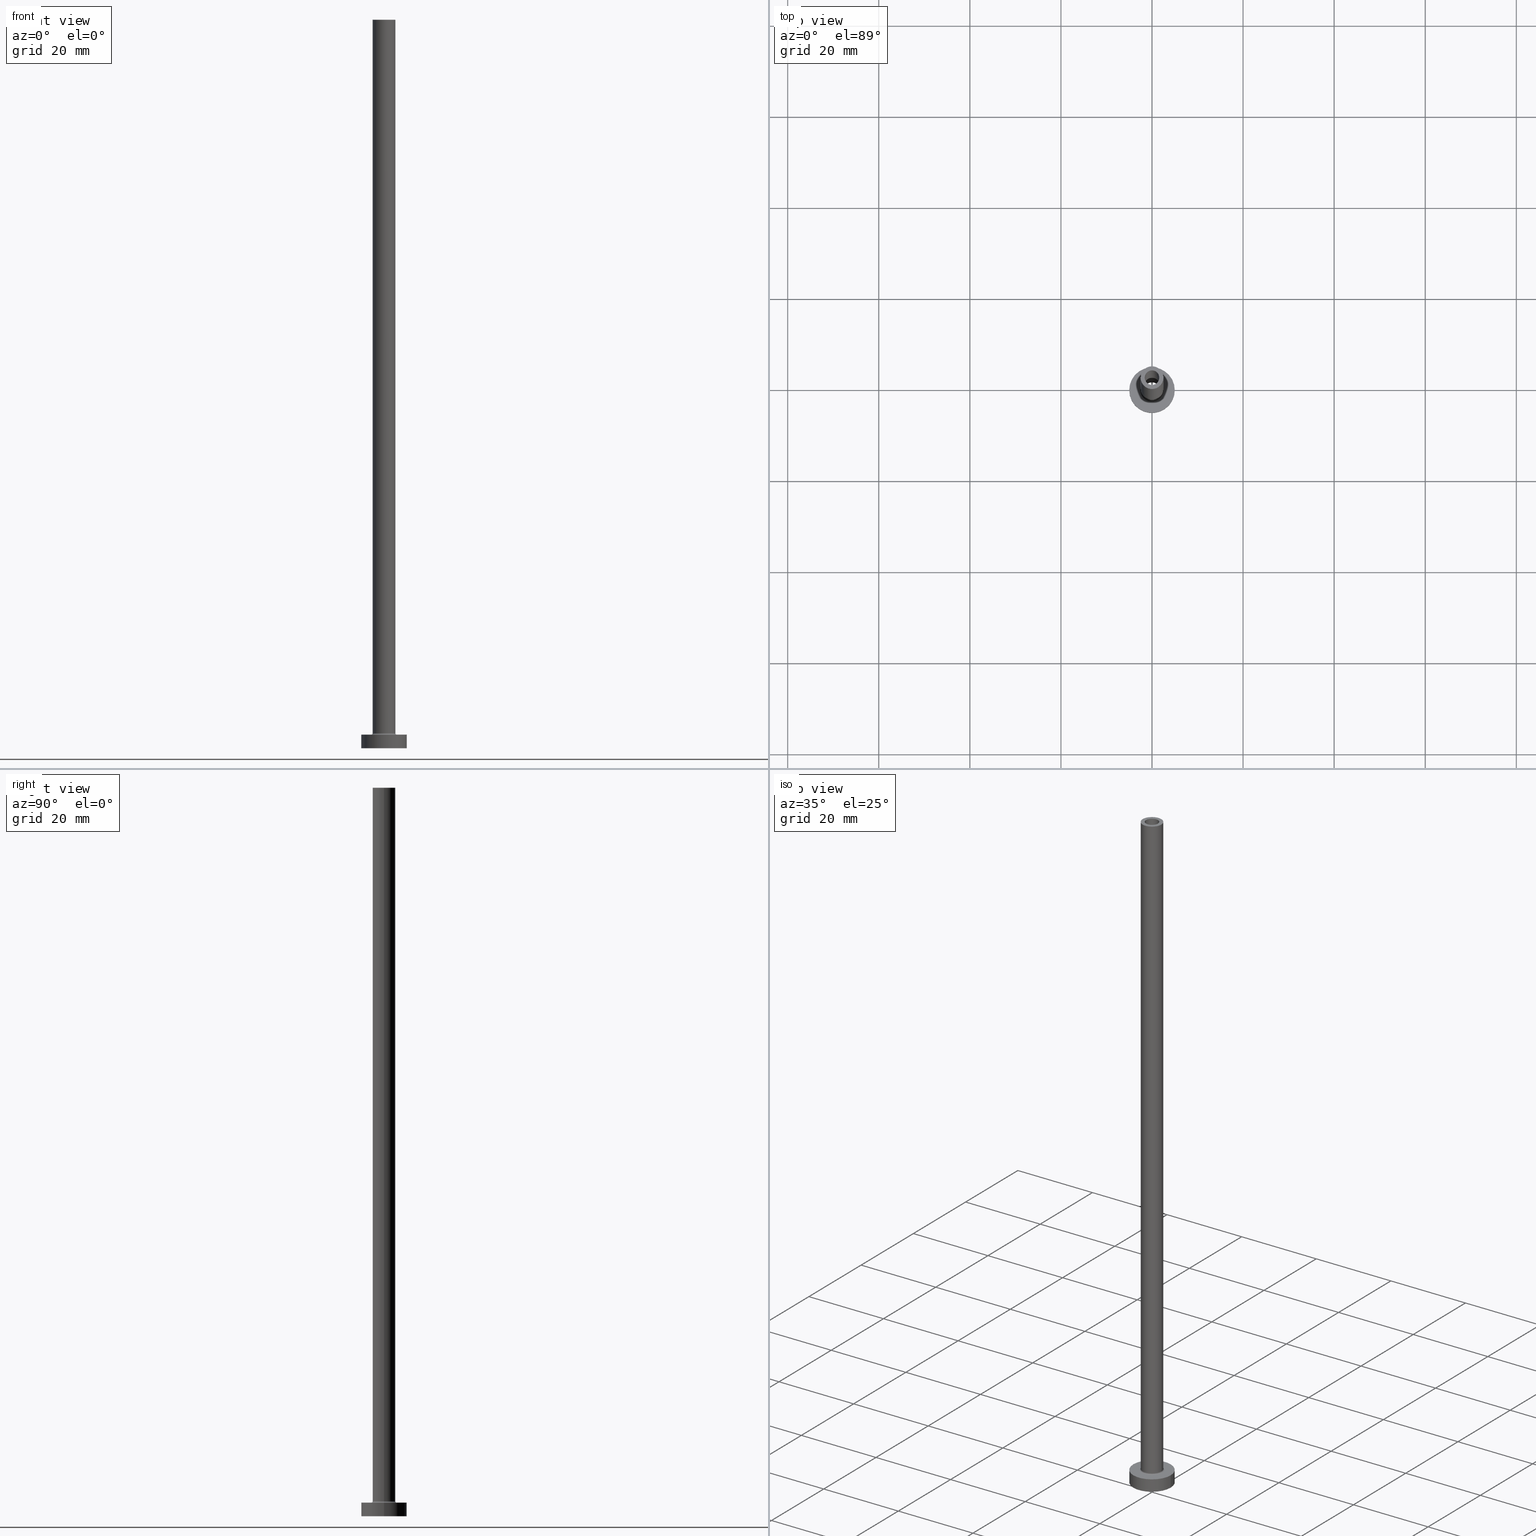
[diagram: canonical four-view strip — front | top / right | iso, engineering-drawing reading convention]
A machine part, canonical four-view strip (front | top / right | iso — engineering-drawing reading convention). The complete STEP part file that produces these views, byte-faithful:
ISO-10303-21;
HEADER;
FILE_DESCRIPTION (( 'STEP AP203' ),
    '1' );
FILE_NAME ('24dd.STEP',
    '2023-02-13T12:02:35',
    ( '' ),
    ( '' ),
    'SwSTEP 2.0',
    'SolidWorks 2019',
    '' );
FILE_SCHEMA (( 'CONFIG_CONTROL_DESIGN' ));
ENDSEC;

DATA;
#1 = DIRECTION ( 'NONE',  ( 1.000000000000000000, 0.000000000000000000, 0.000000000000000000 ) ) ;
#2 = DIRECTION ( 'NONE',  ( 0.000000000000000000, 0.000000000000000000, 1.000000000000000000 ) ) ;
#3 = CIRCLE ( 'NONE', #156, 1.750000000000000000 ) ;
#4 = MECHANICAL_CONTEXT ( 'NONE', #58, 'mechanical' ) ;
#5 = CARTESIAN_POINT ( 'NONE',  ( -5.000000000000000000, 0.000000000000000000, 0.000000000000000000 ) ) ;
#6 = DIRECTION ( 'NONE',  ( -1.000000000000000000, 0.000000000000000000, 0.000000000000000000 ) ) ;
#7 = EDGE_CURVE ( 'NONE', #23, #261, #231, .T. ) ;
#8 = ADVANCED_FACE ( 'NONE', ( #367, #179 ), #406, .F. ) ;
#9 = VECTOR ( 'NONE', #398, 1000.000000000000000 ) ;
#10 = EDGE_CURVE ( 'NONE', #287, #280, #31, .T. ) ;
#11 = FACE_OUTER_BOUND ( 'NONE', #283, .T. ) ;
#12 = EDGE_LOOP ( 'NONE', ( #222, #163 ) ) ;
#13 = EDGE_CURVE ( 'NONE', #139, #230, #275, .T. ) ;
#14 = CARTESIAN_POINT ( 'NONE',  ( -2.799999999999999822, 3.429011037612589276E-16, 2.999999999999998668 ) ) ;
#15 = DIRECTION ( 'NONE',  ( 1.000000000000000000, 0.000000000000000000, 0.000000000000000000 ) ) ;
#16 = ORIENTED_EDGE ( 'NONE', *, *, #136, .F. ) ;
#17 = LINE ( 'NONE', #448, #173 ) ;
#18 = AXIS2_PLACEMENT_3D ( 'NONE', #200, #199, #349 ) ;
#19 = CARTESIAN_POINT ( 'NONE',  ( -2.500000000000000000, 0.000000000000000000, 160.0000000000000000 ) ) ;
#20 = APPROVAL ( #224, 'NEUR�EN�' ) ;
#21 = ADVANCED_FACE ( 'NONE', ( #11 ), #282, .F. ) ;
#22 = DIRECTION ( 'NONE',  ( 1.224646799147353207E-16, 1.000000000000000000, -0.000000000000000000 ) ) ;
#23 = VERTEX_POINT ( 'NONE', #14 ) ;
#24 = VERTEX_POINT ( 'NONE', #123 ) ;
#25 = CIRCLE ( 'NONE', #133, 2.500000000000000000 ) ;
#26 = PERSON_AND_ORGANIZATION ( #340, #331 ) ;
#27 = CC_DESIGN_DATE_AND_TIME_ASSIGNMENT ( #300, #29, ( #125 ) ) ;
#28 = ORIENTED_EDGE ( 'NONE', *, *, #453, .F. ) ;
#29 = DATE_TIME_ROLE ( 'classification_date' ) ;
#30 = ADVANCED_FACE ( 'NONE', ( #212 ), #197, .F. ) ;
#31 = CIRCLE ( 'NONE', #138, 5.000000000000000000 ) ;
#32 = APPROVAL_DATE_TIME ( #420, #91 ) ;
#33 = AXIS2_PLACEMENT_3D ( 'NONE', #423, #108, #6 ) ;
#34 = EDGE_CURVE ( 'NONE', #385, #24, #351, .T. ) ;
#35 = CARTESIAN_POINT ( 'NONE',  ( 0.000000000000000000, 0.000000000000000000, 160.0000000000000000 ) ) ;
#36 = ORIENTED_EDGE ( 'NONE', *, *, #74, .F. ) ;
#37 = EDGE_LOOP ( 'NONE', ( #76, #451, #247, #322 ) ) ;
#38 = EDGE_CURVE ( 'NONE', #236, #310, #253, .T. ) ;
#39 = VECTOR ( 'NONE', #98, 1000.000000000000000 ) ;
#40 = AXIS2_PLACEMENT_3D ( 'NONE', #72, #312, #1 ) ;
#41 = PERSON_AND_ORGANIZATION ( #340, #331 ) ;
#42 = PERSON_AND_ORGANIZATION_ROLE ( 'design_owner' ) ;
#43 = DIRECTION ( 'NONE',  ( 1.000000000000000000, 0.000000000000000000, 0.000000000000000000 ) ) ;
#44 = APPROVAL_PERSON_ORGANIZATION ( #419, #20, #100 ) ;
#45 = CARTESIAN_POINT ( 'NONE',  ( 0.000000000000000000, 0.000000000000000000, 0.000000000000000000 ) ) ;
#46 = ORIENTED_EDGE ( 'NONE', *, *, #186, .T. ) ;
#47 = CARTESIAN_POINT ( 'NONE',  ( 0.000000000000000000, 0.000000000000000000, 160.0000000000000000 ) ) ;
#48 = CARTESIAN_POINT ( 'NONE',  ( -1.750000000000000000, 0.000000000000000000, 115.0000000000000000 ) ) ;
#49 = DIRECTION ( 'NONE',  ( -0.000000000000000000, -0.000000000000000000, -1.000000000000000000 ) ) ;
#50 = DIRECTION ( 'NONE',  ( 0.000000000000000000, -1.000000000000000000, 0.000000000000000000 ) ) ;
#51 = ORIENTED_EDGE ( 'NONE', *, *, #115, .F. ) ;
#52 = AXIS2_PLACEMENT_3D ( 'NONE', #444, #120, #85 ) ;
#53 = CARTESIAN_POINT ( 'NONE',  ( 0.000000000000000000, 0.000000000000000000, 160.0000000000000000 ) ) ;
#54 = VECTOR ( 'NONE', #147, 1000.000000000000000 ) ;
#55 = LINE ( 'NONE', #335, #417 ) ;
#56 = ORIENTED_EDGE ( 'NONE', *, *, #453, .T. ) ;
#57 = COORDINATED_UNIVERSAL_TIME_OFFSET ( 1, 0, .AHEAD. ) ;
#58 = APPLICATION_CONTEXT ( 'configuration controlled 3d designs of mechanical parts and assemblies' ) ;
#59 =( NAMED_UNIT ( * ) SI_UNIT ( $, .STERADIAN. ) SOLID_ANGLE_UNIT ( ) );
#60 = ADVANCED_FACE ( 'NONE', ( #88 ), #408, .T. ) ;
#61 = VERTEX_POINT ( 'NONE', #244 ) ;
#62 = LOCAL_TIME ( 13, 2, 35.00000000000000000, #371 ) ;
#63 = DIRECTION ( 'NONE',  ( 1.000000000000000000, 0.000000000000000000, 0.000000000000000000 ) ) ;
#64 = ORIENTED_EDGE ( 'NONE', *, *, #446, .F. ) ;
#65 = DIRECTION ( 'NONE',  ( 1.000000000000000000, 0.000000000000000000, 0.000000000000000000 ) ) ;
#66 = AXIS2_PLACEMENT_3D ( 'NONE', #121, #2, #69 ) ;
#67 = EDGE_CURVE ( 'NONE', #280, #235, #92, .T. ) ;
#68 = DIRECTION ( 'NONE',  ( -1.000000000000000000, 0.000000000000000000, 0.000000000000000000 ) ) ;
#69 = DIRECTION ( 'NONE',  ( 1.000000000000000000, 0.000000000000000000, 0.000000000000000000 ) ) ;
#70 = EDGE_CURVE ( 'NONE', #310, #61, #17, .T. ) ;
#71 = ORIENTED_EDGE ( 'NONE', *, *, #13, .F. ) ;
#72 = CARTESIAN_POINT ( 'NONE',  ( 0.000000000000000000, 0.000000000000000000, 160.0000000000000000 ) ) ;
#73 = CARTESIAN_POINT ( 'NONE',  ( 0.000000000000000000, 0.000000000000000000, 0.000000000000000000 ) ) ;
#74 = EDGE_CURVE ( 'NONE', #385, #23, #155, .T. ) ;
#75 = DIRECTION ( 'NONE',  ( 1.000000000000000000, 0.000000000000000000, 0.000000000000000000 ) ) ;
#76 = ORIENTED_EDGE ( 'NONE', *, *, #432, .T. ) ;
#77 = CARTESIAN_POINT ( 'NONE',  ( 2.500000000000000000, 3.061616997868383141E-16, 160.0000000000000000 ) ) ;
#78 = VECTOR ( 'NONE', #281, 1000.000000000000000 ) ;
#79 = AXIS2_PLACEMENT_3D ( 'NONE', #267, #265, #145 ) ;
#80 = COORDINATED_UNIVERSAL_TIME_OFFSET ( 1, 0, .AHEAD. ) ;
#81 = CARTESIAN_POINT ( 'NONE',  ( 2.500000000000000000, 3.061616997868383141E-16, 160.0000000000000000 ) ) ;
#82 = ORIENTED_EDGE ( 'NONE', *, *, #415, .T. ) ;
#83 = LINE ( 'NONE', #81, #314 ) ;
#84 = CARTESIAN_POINT ( 'NONE',  ( 5.000000000000000000, 6.123233995736766282E-16, 3.000000000000000000 ) ) ;
#85 = DIRECTION ( 'NONE',  ( -1.000000000000000000, 0.000000000000000000, 0.000000000000000000 ) ) ;
#86 = CIRCLE ( 'NONE', #438, 0.2999999999999999334 ) ;
#87 =( GEOMETRIC_REPRESENTATION_CONTEXT ( 3 ) GLOBAL_UNCERTAINTY_ASSIGNED_CONTEXT ( ( #214 ) ) GLOBAL_UNIT_ASSIGNED_CONTEXT ( ( #251, #412, #59 ) ) REPRESENTATION_CONTEXT ( 'NONE', 'WORKASPACE' ) );
#88 = FACE_OUTER_BOUND ( 'NONE', #307, .T. ) ;
#89 = DIRECTION ( 'NONE',  ( 0.000000000000000000, 0.000000000000000000, 1.000000000000000000 ) ) ;
#90 = CARTESIAN_POINT ( 'NONE',  ( 0.000000000000000000, 0.000000000000000000, 160.0000000000000000 ) ) ;
#91 = APPROVAL ( #274, 'NEUR�EN�' ) ;
#92 = LINE ( 'NONE', #293, #148 ) ;
#93 = ADVANCED_FACE ( 'NONE', ( #207 ), #317, .T. ) ;
#94 = CARTESIAN_POINT ( 'NONE',  ( 0.000000000000000000, 0.000000000000000000, 0.000000000000000000 ) ) ;
#95 = DIRECTION ( 'NONE',  ( -1.000000000000000000, 0.000000000000000000, 0.000000000000000000 ) ) ;
#96 = AXIS2_PLACEMENT_3D ( 'NONE', #90, #324, #284 ) ;
#97 = AXIS2_PLACEMENT_3D ( 'NONE', #152, #361, #15 ) ;
#98 = DIRECTION ( 'NONE',  ( 0.000000000000000000, 0.000000000000000000, -1.000000000000000000 ) ) ;
#99 = APPROVAL_ROLE ( '' ) ;
#100 = APPROVAL_ROLE ( '' ) ;
#101 = DIRECTION ( 'NONE',  ( -0.000000000000000000, -0.000000000000000000, -1.000000000000000000 ) ) ;
#102 = AXIS2_PLACEMENT_3D ( 'NONE', #187, #403, #215 ) ;
#103 = AXIS2_PLACEMENT_3D ( 'NONE', #266, #342, #165 ) ;
#104 = CARTESIAN_POINT ( 'NONE',  ( 0.000000000000000000, 0.000000000000000000, 3.299999999999997158 ) ) ;
#105 = CALENDAR_DATE ( 2023, 13, 2 ) ;
#106 = DIRECTION ( 'NONE',  ( 0.000000000000000000, 0.000000000000000000, 1.000000000000000000 ) ) ;
#107 = ORIENTED_EDGE ( 'NONE', *, *, #38, .T. ) ;
#108 = DIRECTION ( 'NONE',  ( 0.000000000000000000, 0.000000000000000000, -1.000000000000000000 ) ) ;
#109 = ORIENTED_EDGE ( 'NONE', *, *, #115, .T. ) ;
#110 = LINE ( 'NONE', #386, #54 ) ;
#111 = FACE_OUTER_BOUND ( 'NONE', #238, .T. ) ;
#112 = CC_DESIGN_PERSON_AND_ORGANIZATION_ASSIGNMENT ( #181, #262, ( #239 ) ) ;
#113 = CARTESIAN_POINT ( 'NONE',  ( 0.000000000000000000, 0.000000000000000000, 115.0000000000000000 ) ) ;
#114 = EDGE_LOOP ( 'NONE', ( #143, #109, #441, #369 ) ) ;
#115 = EDGE_CURVE ( 'NONE', #213, #339, #149, .T. ) ;
#116 = PLANE ( 'NONE',  #254 ) ;
#117 = AXIS2_PLACEMENT_3D ( 'NONE', #94, #443, #445 ) ;
#118 = DIRECTION ( 'NONE',  ( -0.000000000000000000, -0.000000000000000000, -1.000000000000000000 ) ) ;
#119 = PRODUCT_DEFINITION_SHAPE ( 'NONE', 'NONE',  #357 ) ;
#120 = DIRECTION ( 'NONE',  ( 0.000000000000000000, 0.000000000000000000, -1.000000000000000000 ) ) ;
#121 = CARTESIAN_POINT ( 'NONE',  ( 0.000000000000000000, 0.000000000000000000, 115.0000000000000000 ) ) ;
#122 = DIRECTION ( 'NONE',  ( -0.000000000000000000, -0.000000000000000000, -1.000000000000000000 ) ) ;
#123 = CARTESIAN_POINT ( 'NONE',  ( 2.500000000000000000, 3.061616997868383141E-16, 3.299999999999997158 ) ) ;
#124 = APPROVAL ( #311, 'NEUR�EN�' ) ;
#125 = SECURITY_CLASSIFICATION ( '', '', #195 ) ;
#126 = DIRECTION ( 'NONE',  ( -1.000000000000000000, 0.000000000000000000, 0.000000000000000000 ) ) ;
#127 = LINE ( 'NONE', #128, #39 ) ;
#128 = CARTESIAN_POINT ( 'NONE',  ( -1.750000000000000000, 0.000000000000000000, 119.9497474683058442 ) ) ;
#129 = LOCAL_TIME ( 13, 2, 35.00000000000000000, #337 ) ;
#130 = CALENDAR_DATE ( 2023, 13, 2 ) ;
#131 = ORIENTED_EDGE ( 'NONE', *, *, #151, .F. ) ;
#132 = PERSON_AND_ORGANIZATION ( #340, #331 ) ;
#133 = AXIS2_PLACEMENT_3D ( 'NONE', #345, #106, #63 ) ;
#134 = CARTESIAN_POINT ( 'NONE',  ( 0.000000000000000000, 0.000000000000000000, 115.0000000000000000 ) ) ;
#135 = DATE_TIME_ROLE ( 'creation_date' ) ;
#136 = EDGE_CURVE ( 'NONE', #144, #213, #288, .T. ) ;
#137 = CARTESIAN_POINT ( 'NONE',  ( -5.000000000000000000, 0.000000000000000000, 3.000000000000000000 ) ) ;
#138 = AXIS2_PLACEMENT_3D ( 'NONE', #356, #175, #320 ) ;
#139 = VERTEX_POINT ( 'NONE', #19 ) ;
#140 = CC_DESIGN_APPROVAL ( #20, ( #125 ) ) ;
#141 = CYLINDRICAL_SURFACE ( 'NONE', #263, 2.500000000000000000 ) ;
#142 = DIRECTION ( 'NONE',  ( 0.000000000000000000, 0.000000000000000000, 1.000000000000000000 ) ) ;
#143 = ORIENTED_EDGE ( 'NONE', *, *, #136, .T. ) ;
#144 = VERTEX_POINT ( 'NONE', #48 ) ;
#145 = DIRECTION ( 'NONE',  ( 1.000000000000000000, 0.000000000000000000, 0.000000000000000000 ) ) ;
#146 = DIRECTION ( 'NONE',  ( -0.000000000000000000, -0.000000000000000000, -1.000000000000000000 ) ) ;
#147 = DIRECTION ( 'NONE',  ( -0.000000000000000000, -0.000000000000000000, -1.000000000000000000 ) ) ;
#148 = VECTOR ( 'NONE', #49, 1000.000000000000000 ) ;
#149 = LINE ( 'NONE', #245, #9 ) ;
#150 = ORIENTED_EDGE ( 'NONE', *, *, #34, .T. ) ;
#151 = EDGE_CURVE ( 'NONE', #24, #261, #86, .T. ) ;
#152 = CARTESIAN_POINT ( 'NONE',  ( 0.000000000000000000, 0.000000000000000000, 160.0000000000000000 ) ) ;
#153 = LINE ( 'NONE', #84, #78 ) ;
#154 = DIRECTION ( 'NONE',  ( -1.000000000000000000, 0.000000000000000000, 0.000000000000000000 ) ) ;
#155 = CIRCLE ( 'NONE', #384, 0.2999999999999999334 ) ;
#156 = AXIS2_PLACEMENT_3D ( 'NONE', #134, #352, #308 ) ;
#157 = DIRECTION ( 'NONE',  ( -1.000000000000000000, 1.224646799147353207E-16, 0.000000000000000000 ) ) ;
#158 = ORIENTED_EDGE ( 'NONE', *, *, #186, .F. ) ;
#159 = EDGE_LOOP ( 'NONE', ( #347, #28, #258, #301 ) ) ;
#160 = AXIS2_PLACEMENT_3D ( 'NONE', #104, #424, #229 ) ;
#161 = PERSON_AND_ORGANIZATION_ROLE ( 'design_supplier' ) ;
#162 = CALENDAR_DATE ( 2023, 13, 2 ) ;
#163 = ORIENTED_EDGE ( 'NONE', *, *, #7, .T. ) ;
#164 = EDGE_CURVE ( 'NONE', #287, #256, #153, .T. ) ;
#165 = DIRECTION ( 'NONE',  ( 1.000000000000000000, 0.000000000000000000, 0.000000000000000000 ) ) ;
#166 = EDGE_LOOP ( 'NONE', ( #426, #399 ) ) ;
#167 = DIRECTION ( 'NONE',  ( 1.000000000000000000, 0.000000000000000000, 0.000000000000000000 ) ) ;
#168 = PRODUCT_RELATED_PRODUCT_CATEGORY ( 'detail', '', ( #397 ) ) ;
#169 = ORIENTED_EDGE ( 'NONE', *, *, #74, .T. ) ;
#170 = FACE_OUTER_BOUND ( 'NONE', #364, .T. ) ;
#171 = CIRCLE ( 'NONE', #79, 1.750000000000000000 ) ;
#172 = FACE_OUTER_BOUND ( 'NONE', #402, .T. ) ;
#173 = VECTOR ( 'NONE', #248, 1000.000000000000000 ) ;
#174 = DIRECTION ( 'NONE',  ( 1.000000000000000000, 0.000000000000000000, 0.000000000000000000 ) ) ;
#175 = DIRECTION ( 'NONE',  ( 0.000000000000000000, 0.000000000000000000, 1.000000000000000000 ) ) ;
#176 = ORIENTED_EDGE ( 'NONE', *, *, #70, .T. ) ;
#177 = CIRCLE ( 'NONE', #330, 2.500000000000000000 ) ;
#178 = CARTESIAN_POINT ( 'NONE',  ( 0.000000000000000000, 0.000000000000000000, 119.9497474683058442 ) ) ;
#179 = FACE_OUTER_BOUND ( 'NONE', #455, .T. ) ;
#180 = ORIENTED_EDGE ( 'NONE', *, *, #232, .T. ) ;
#181 = PERSON_AND_ORGANIZATION ( #340, #331 ) ;
#182 = CC_DESIGN_DATE_AND_TIME_ASSIGNMENT ( #189, #135, ( #357 ) ) ;
#183 = FACE_BOUND ( 'NONE', #428, .T. ) ;
#184 = ORIENTED_EDGE ( 'NONE', *, *, #67, .F. ) ;
#185 = ORIENTED_EDGE ( 'NONE', *, *, #432, .F. ) ;
#186 = EDGE_CURVE ( 'NONE', #431, #339, #302, .T. ) ;
#187 = CARTESIAN_POINT ( 'NONE',  ( 0.000000000000000000, 0.000000000000000000, 3.299999999999997158 ) ) ;
#188 = PERSON_AND_ORGANIZATION_ROLE ( 'creator' ) ;
#189 = DATE_AND_TIME ( #162, #129 ) ;
#190 = COORDINATED_UNIVERSAL_TIME_OFFSET ( 1, 0, .AHEAD. ) ;
#191 = AXIS2_PLACEMENT_3D ( 'NONE', #178, #241, #405 ) ;
#192 = ORIENTED_EDGE ( 'NONE', *, *, #164, .T. ) ;
#193 = CIRCLE ( 'NONE', #427, 2.799999999999999822 ) ;
#194 = EDGE_LOOP ( 'NONE', ( #36, #373, #295, #378 ) ) ;
#195 = SECURITY_CLASSIFICATION_LEVEL ( 'unclassified' ) ;
#196 = ORIENTED_EDGE ( 'NONE', *, *, #272, .T. ) ;
#197 = TOROIDAL_SURFACE ( 'NONE', #102, 2.799999999999999822, 0.2999999999999999889 ) ;
#198 = CYLINDRICAL_SURFACE ( 'NONE', #33, 1.750000000000000000 ) ;
#199 = DIRECTION ( 'NONE',  ( 0.000000000000000000, 0.000000000000000000, 1.000000000000000000 ) ) ;
#200 = CARTESIAN_POINT ( 'NONE',  ( 0.000000000000000000, 0.000000000000000000, 3.000000000000000000 ) ) ;
#201 = ORIENTED_EDGE ( 'NONE', *, *, #415, .F. ) ;
#202 = AXIS2_PLACEMENT_3D ( 'NONE', #360, #89, #174 ) ;
#203 = CIRCLE ( 'NONE', #66, 1.600000000000000089 ) ;
#204 = CARTESIAN_POINT ( 'NONE',  ( 0.000000000000000000, 0.000000000000000000, 3.299999999999997158 ) ) ;
#205 = FACE_OUTER_BOUND ( 'NONE', #326, .T. ) ;
#206 = ADVANCED_FACE ( 'NONE', ( #435 ), #216, .F. ) ;
#207 = FACE_OUTER_BOUND ( 'NONE', #159, .T. ) ;
#208 = CARTESIAN_POINT ( 'NONE',  ( 0.000000000000000000, 0.000000000000000000, 115.0000000000000000 ) ) ;
#209 = APPROVAL_DATE_TIME ( #217, #124 ) ;
#210 = AXIS2_PLACEMENT_3D ( 'NONE', #113, #309, #346 ) ;
#211 = CARTESIAN_POINT ( 'NONE',  ( 1.750000000000000000, 2.143131898507868297E-16, 115.0000000000000000 ) ) ;
#212 = FACE_OUTER_BOUND ( 'NONE', #194, .T. ) ;
#213 = VERTEX_POINT ( 'NONE', #211 ) ;
#214 = UNCERTAINTY_MEASURE_WITH_UNIT (LENGTH_MEASURE( 1.000000000000000082E-05 ), #251, 'distance_accuracy_value', 'NONE');
#215 = DIRECTION ( 'NONE',  ( 1.000000000000000000, 0.000000000000000000, 0.000000000000000000 ) ) ;
#216 = CYLINDRICAL_SURFACE ( 'NONE', #191, 1.750000000000000000 ) ;
#217 = DATE_AND_TIME ( #249, #62 ) ;
#218 = AXIS2_PLACEMENT_3D ( 'NONE', #45, #246, #436 ) ;
#219 = CARTESIAN_POINT ( 'NONE',  ( -2.799999999999999822, 3.429011037612588783E-16, 3.299999999999997158 ) ) ;
#220 = CARTESIAN_POINT ( 'NONE',  ( 1.750000000000000000, 2.143131898507868297E-16, 0.000000000000000000 ) ) ;
#221 = CIRCLE ( 'NONE', #393, 5.000000000000000000 ) ;
#222 = ORIENTED_EDGE ( 'NONE', *, *, #379, .T. ) ;
#223 = ADVANCED_FACE ( 'NONE', ( #183, #366 ), #116, .T. ) ;
#224 = APPROVAL_STATUS ( 'not_yet_approved' ) ;
#225 = ORIENTED_EDGE ( 'NONE', *, *, #450, .T. ) ;
#226 = ORIENTED_EDGE ( 'NONE', *, *, #38, .F. ) ;
#227 = AXIS2_PLACEMENT_3D ( 'NONE', #286, #122, #154 ) ;
#228 = AXIS2_PLACEMENT_3D ( 'NONE', #73, #142, #387 ) ;
#229 = DIRECTION ( 'NONE',  ( 1.000000000000000000, 0.000000000000000000, 0.000000000000000000 ) ) ;
#230 = VERTEX_POINT ( 'NONE', #77 ) ;
#231 = CIRCLE ( 'NONE', #434, 2.799999999999999822 ) ;
#232 = EDGE_CURVE ( 'NONE', #24, #385, #177, .T. ) ;
#233 = CARTESIAN_POINT ( 'NONE',  ( 0.000000000000000000, 0.000000000000000000, 3.000000000000000000 ) ) ;
#234 = CARTESIAN_POINT ( 'NONE',  ( 0.000000000000000000, 0.000000000000000000, 3.000000000000000000 ) ) ;
#235 = VERTEX_POINT ( 'NONE', #5 ) ;
#236 = VERTEX_POINT ( 'NONE', #442 ) ;
#237 = DIRECTION ( 'NONE',  ( 0.000000000000000000, 0.000000000000000000, 1.000000000000000000 ) ) ;
#238 = EDGE_LOOP ( 'NONE', ( #56, #390 ) ) ;
#239 = PRODUCT_DEFINITION_FORMATION_WITH_SPECIFIED_SOURCE ( 'LIBOVOLN�', '', #397, .NOT_KNOWN. ) ;
#240 = DIRECTION ( 'NONE',  ( 1.000000000000000000, 0.000000000000000000, 0.000000000000000000 ) ) ;
#241 = DIRECTION ( 'NONE',  ( 0.000000000000000000, 0.000000000000000000, -1.000000000000000000 ) ) ;
#242 = EDGE_LOOP ( 'NONE', ( #296, #192, #343, #184 ) ) ;
#243 = CIRCLE ( 'NONE', #407, 5.000000000000000000 ) ;
#244 = CARTESIAN_POINT ( 'NONE',  ( -1.600000000000000089, 0.000000000000000000, 115.0000000000000000 ) ) ;
#245 = CARTESIAN_POINT ( 'NONE',  ( 1.750000000000000000, 2.143131898507868297E-16, 119.9497474683058442 ) ) ;
#246 = DIRECTION ( 'NONE',  ( 0.000000000000000000, 0.000000000000000000, 1.000000000000000000 ) ) ;
#247 = ORIENTED_EDGE ( 'NONE', *, *, #359, .F. ) ;
#248 = DIRECTION ( 'NONE',  ( 0.000000000000000000, 0.000000000000000000, -1.000000000000000000 ) ) ;
#249 = CALENDAR_DATE ( 2023, 13, 2 ) ;
#250 = CARTESIAN_POINT ( 'NONE',  ( 1.600000000000000089, 1.959434878635764737E-16, 115.0000000000000000 ) ) ;
#251 =( LENGTH_UNIT ( ) NAMED_UNIT ( * ) SI_UNIT ( .MILLI., .METRE. ) );
#252 = DIRECTION ( 'NONE',  ( 1.000000000000000000, 0.000000000000000000, 0.000000000000000000 ) ) ;
#253 = CIRCLE ( 'NONE', #97, 1.600000000000000089 ) ;
#254 = AXIS2_PLACEMENT_3D ( 'NONE', #394, #316, #392 ) ;
#255 = CYLINDRICAL_SURFACE ( 'NONE', #447, 5.000000000000000000 ) ;
#256 = VERTEX_POINT ( 'NONE', #400 ) ;
#257 = CALENDAR_DATE ( 2023, 13, 2 ) ;
#258 = ORIENTED_EDGE ( 'NONE', *, *, #67, .T. ) ;
#259 = CC_DESIGN_PERSON_AND_ORGANIZATION_ASSIGNMENT ( #260, #188, ( #357 ) ) ;
#260 = PERSON_AND_ORGANIZATION ( #340, #331 ) ;
#261 = VERTEX_POINT ( 'NONE', #323 ) ;
#262 = PERSON_AND_ORGANIZATION_ROLE ( 'creator' ) ;
#263 = AXIS2_PLACEMENT_3D ( 'NONE', #35, #396, #68 ) ;
#264 = CC_DESIGN_PERSON_AND_ORGANIZATION_ASSIGNMENT ( #132, #161, ( #239 ) ) ;
#265 = DIRECTION ( 'NONE',  ( -0.000000000000000000, -0.000000000000000000, -1.000000000000000000 ) ) ;
#266 = CARTESIAN_POINT ( 'NONE',  ( 0.000000000000000000, 0.000000000000000000, 0.000000000000000000 ) ) ;
#267 = CARTESIAN_POINT ( 'NONE',  ( 0.000000000000000000, 0.000000000000000000, 0.000000000000000000 ) ) ;
#268 = ORIENTED_EDGE ( 'NONE', *, *, #460, .F. ) ;
#269 = APPROVAL_PERSON_ORGANIZATION ( #422, #91, #433 ) ;
#270 = EDGE_CURVE ( 'NONE', #230, #24, #83, .T. ) ;
#271 = PLANE ( 'NONE',  #210 ) ;
#272 = EDGE_CURVE ( 'NONE', #285, #61, #454, .T. ) ;
#273 = FACE_OUTER_BOUND ( 'NONE', #376, .T. ) ;
#274 = APPROVAL_STATUS ( 'not_yet_approved' ) ;
#275 = CIRCLE ( 'NONE', #96, 2.500000000000000000 ) ;
#276 = AXIS2_PLACEMENT_3D ( 'NONE', #449, #401, #252 ) ;
#277 = DIRECTION ( 'NONE',  ( -1.000000000000000000, 0.000000000000000000, 0.000000000000000000 ) ) ;
#278 = ADVANCED_FACE ( 'NONE', ( #205 ), #362, .F. ) ;
#279 = LOCAL_TIME ( 13, 2, 35.00000000000000000, #57 ) ;
#280 = VERTEX_POINT ( 'NONE', #137 ) ;
#281 = DIRECTION ( 'NONE',  ( -0.000000000000000000, -0.000000000000000000, -1.000000000000000000 ) ) ;
#282 = CYLINDRICAL_SURFACE ( 'NONE', #52, 1.600000000000000089 ) ;
#283 = EDGE_LOOP ( 'NONE', ( #458, #107, #176, #334 ) ) ;
#284 = DIRECTION ( 'NONE',  ( 1.000000000000000000, 0.000000000000000000, 0.000000000000000000 ) ) ;
#285 = VERTEX_POINT ( 'NONE', #250 ) ;
#286 = CARTESIAN_POINT ( 'NONE',  ( 0.000000000000000000, 0.000000000000000000, 3.000000000000000000 ) ) ;
#287 = VERTEX_POINT ( 'NONE', #416 ) ;
#288 = CIRCLE ( 'NONE', #202, 1.750000000000000000 ) ;
#289 = CC_DESIGN_PERSON_AND_ORGANIZATION_ASSIGNMENT ( #26, #377, ( #125 ) ) ;
#290 = CIRCLE ( 'NONE', #40, 1.600000000000000089 ) ;
#291 = CYLINDRICAL_SURFACE ( 'NONE', #353, 1.600000000000000089 ) ;
#292 = EDGE_LOOP ( 'NONE', ( #158, #363 ) ) ;
#293 = CARTESIAN_POINT ( 'NONE',  ( -5.000000000000000000, 0.000000000000000000, 3.000000000000000000 ) ) ;
#294 = ADVANCED_FACE ( 'NONE', ( #328 ), #291, .F. ) ;
#295 = ORIENTED_EDGE ( 'NONE', *, *, #151, .T. ) ;
#296 = ORIENTED_EDGE ( 'NONE', *, *, #10, .F. ) ;
#297 = DIRECTION ( 'NONE',  ( 0.000000000000000000, 0.000000000000000000, -1.000000000000000000 ) ) ;
#298 = MANIFOLD_SOLID_BREP ( 'Odebrat vysunut�m4', #391 ) ;
#299 = DESIGN_CONTEXT ( 'detailed design', #459, 'design' ) ;
#300 = DATE_AND_TIME ( #130, #279 ) ;
#301 = ORIENTED_EDGE ( 'NONE', *, *, #370, .T. ) ;
#302 = CIRCLE ( 'NONE', #117, 1.750000000000000000 ) ;
#303 = EDGE_LOOP ( 'NONE', ( #338, #196 ) ) ;
#304 = APPLICATION_PROTOCOL_DEFINITION ( 'international standard', 'config_control_design', 1994, #58 ) ;
#305 = APPROVAL_PERSON_ORGANIZATION ( #354, #124, #99 ) ;
#306 = ORIENTED_EDGE ( 'NONE', *, *, #270, .T. ) ;
#307 = EDGE_LOOP ( 'NONE', ( #268, #306, #180, #201 ) ) ;
#308 = DIRECTION ( 'NONE',  ( 1.000000000000000000, 0.000000000000000000, 0.000000000000000000 ) ) ;
#309 = DIRECTION ( 'NONE',  ( 0.000000000000000000, 0.000000000000000000, 1.000000000000000000 ) ) ;
#310 = VERTEX_POINT ( 'NONE', #332 ) ;
#311 = APPROVAL_STATUS ( 'not_yet_approved' ) ;
#312 = DIRECTION ( 'NONE',  ( 0.000000000000000000, 0.000000000000000000, 1.000000000000000000 ) ) ;
#313 = FACE_BOUND ( 'NONE', #303, .T. ) ;
#314 = VECTOR ( 'NONE', #146, 1000.000000000000000 ) ;
#315 = ORIENTED_EDGE ( 'NONE', *, *, #270, .F. ) ;
#316 = DIRECTION ( 'NONE',  ( 0.000000000000000000, 0.000000000000000000, 1.000000000000000000 ) ) ;
#317 = CYLINDRICAL_SURFACE ( 'NONE', #227, 5.000000000000000000 ) ;
#318 = DIRECTION ( 'NONE',  ( 1.000000000000000000, 0.000000000000000000, 0.000000000000000000 ) ) ;
#319 = DIRECTION ( 'NONE',  ( 0.000000000000000000, 0.000000000000000000, -1.000000000000000000 ) ) ;
#320 = DIRECTION ( 'NONE',  ( 1.000000000000000000, 0.000000000000000000, 0.000000000000000000 ) ) ;
#321 = CIRCLE ( 'NONE', #228, 5.000000000000000000 ) ;
#322 = ORIENTED_EDGE ( 'NONE', *, *, #70, .F. ) ;
#323 = CARTESIAN_POINT ( 'NONE',  ( 2.799999999999999822, 0.000000000000000000, 2.999999999999998668 ) ) ;
#324 = DIRECTION ( 'NONE',  ( 0.000000000000000000, 0.000000000000000000, 1.000000000000000000 ) ) ;
#325 = ORIENTED_EDGE ( 'NONE', *, *, #379, .F. ) ;
#326 = EDGE_LOOP ( 'NONE', ( #336, #169, #325, #131 ) ) ;
#327 = EDGE_CURVE ( 'NONE', #144, #431, #127, .T. ) ;
#328 = FACE_OUTER_BOUND ( 'NONE', #37, .T. ) ;
#329 = ORIENTED_EDGE ( 'NONE', *, *, #450, .F. ) ;
#330 = AXIS2_PLACEMENT_3D ( 'NONE', #204, #358, #318 ) ;
#331 = ORGANIZATION ( 'NEUR�EN�', 'NEUR�EN�', '' ) ;
#332 = CARTESIAN_POINT ( 'NONE',  ( -1.600000000000000089, 0.000000000000000000, 160.0000000000000000 ) ) ;
#333 = DIRECTION ( 'NONE',  ( -0.000000000000000000, -0.000000000000000000, -1.000000000000000000 ) ) ;
#334 = ORIENTED_EDGE ( 'NONE', *, *, #272, .F. ) ;
#335 = CARTESIAN_POINT ( 'NONE',  ( 1.600000000000000089, 1.959434878635764737E-16, 160.0000000000000000 ) ) ;
#336 = ORIENTED_EDGE ( 'NONE', *, *, #34, .F. ) ;
#337 = COORDINATED_UNIVERSAL_TIME_OFFSET ( 1, 0, .AHEAD. ) ;
#338 = ORIENTED_EDGE ( 'NONE', *, *, #359, .T. ) ;
#339 = VERTEX_POINT ( 'NONE', #220 ) ;
#340 = PERSON ( 'NEUR�EN�', 'NEUR�EN�', 'NEUR�EN�', ('NEUR�EN�'), ('NEUR�EN�'), ('NEUR�EN�') ) ;
#341 = CC_DESIGN_PERSON_AND_ORGANIZATION_ASSIGNMENT ( #41, #42, ( #397 ) ) ;
#342 = DIRECTION ( 'NONE',  ( 0.000000000000000000, 0.000000000000000000, 1.000000000000000000 ) ) ;
#343 = ORIENTED_EDGE ( 'NONE', *, *, #446, .T. ) ;
#344 = LOCAL_TIME ( 13, 2, 35.00000000000000000, #190 ) ;
#345 = CARTESIAN_POINT ( 'NONE',  ( 0.000000000000000000, 0.000000000000000000, 160.0000000000000000 ) ) ;
#346 = DIRECTION ( 'NONE',  ( 1.000000000000000000, 0.000000000000000000, -0.000000000000000000 ) ) ;
#347 = ORIENTED_EDGE ( 'NONE', *, *, #164, .F. ) ;
#348 = CARTESIAN_POINT ( 'NONE',  ( -1.750000000000000000, 0.000000000000000000, 0.000000000000000000 ) ) ;
#349 = DIRECTION ( 'NONE',  ( 1.000000000000000000, 0.000000000000000000, -0.000000000000000000 ) ) ;
#350 = EDGE_CURVE ( 'NONE', #236, #285, #55, .T. ) ;
#351 = CIRCLE ( 'NONE', #276, 2.500000000000000000 ) ;
#352 = DIRECTION ( 'NONE',  ( 0.000000000000000000, 0.000000000000000000, 1.000000000000000000 ) ) ;
#353 = AXIS2_PLACEMENT_3D ( 'NONE', #53, #410, #95 ) ;
#354 = PERSON_AND_ORGANIZATION ( #340, #331 ) ;
#355 = ADVANCED_FACE ( 'NONE', ( #452 ), #255, .T. ) ;
#356 = CARTESIAN_POINT ( 'NONE',  ( 0.000000000000000000, 0.000000000000000000, 3.000000000000000000 ) ) ;
#357 = PRODUCT_DEFINITION ( 'NEZN�M�', '', #239, #299 ) ;
#358 = DIRECTION ( 'NONE',  ( 0.000000000000000000, 0.000000000000000000, 1.000000000000000000 ) ) ;
#359 = EDGE_CURVE ( 'NONE', #61, #285, #203, .T. ) ;
#360 = CARTESIAN_POINT ( 'NONE',  ( 0.000000000000000000, 0.000000000000000000, 115.0000000000000000 ) ) ;
#361 = DIRECTION ( 'NONE',  ( 0.000000000000000000, 0.000000000000000000, 1.000000000000000000 ) ) ;
#362 = TOROIDAL_SURFACE ( 'NONE', #160, 2.799999999999999822, 0.2999999999999999889 ) ;
#363 = ORIENTED_EDGE ( 'NONE', *, *, #411, .F. ) ;
#364 = EDGE_LOOP ( 'NONE', ( #16, #329 ) ) ;
#365 = ADVANCED_BREP_SHAPE_REPRESENTATION ( '24dd', ( #298, #103 ), #87 ) ;
#366 = FACE_OUTER_BOUND ( 'NONE', #166, .T. ) ;
#367 = FACE_BOUND ( 'NONE', #292, .T. ) ;
#368 = ORIENTED_EDGE ( 'NONE', *, *, #370, .F. ) ;
#369 = ORIENTED_EDGE ( 'NONE', *, *, #327, .F. ) ;
#370 = EDGE_CURVE ( 'NONE', #235, #256, #321, .T. ) ;
#371 = COORDINATED_UNIVERSAL_TIME_OFFSET ( 1, 0, .AHEAD. ) ;
#372 = SHAPE_DEFINITION_REPRESENTATION ( #119, #365 ) ;
#373 = ORIENTED_EDGE ( 'NONE', *, *, #232, .F. ) ;
#374 = ORIENTED_EDGE ( 'NONE', *, *, #327, .T. ) ;
#375 = CC_DESIGN_SECURITY_CLASSIFICATION ( #125, ( #239 ) ) ;
#376 = EDGE_LOOP ( 'NONE', ( #51, #225, #374, #46 ) ) ;
#377 = PERSON_AND_ORGANIZATION_ROLE ( 'classification_officer' ) ;
#378 = ORIENTED_EDGE ( 'NONE', *, *, #7, .F. ) ;
#379 = EDGE_CURVE ( 'NONE', #261, #23, #193, .T. ) ;
#380 = ADVANCED_FACE ( 'NONE', ( #430, #111 ), #461, .T. ) ;
#381 = AXIS2_PLACEMENT_3D ( 'NONE', #47, #333, #126 ) ;
#382 = DIRECTION ( 'NONE',  ( -0.000000000000000000, -0.000000000000000000, -1.000000000000000000 ) ) ;
#383 = ADVANCED_FACE ( 'NONE', ( #313, #170 ), #271, .F. ) ;
#384 = AXIS2_PLACEMENT_3D ( 'NONE', #219, #22, #157 ) ;
#385 = VERTEX_POINT ( 'NONE', #425 ) ;
#386 = CARTESIAN_POINT ( 'NONE',  ( -2.500000000000000000, 0.000000000000000000, 160.0000000000000000 ) ) ;
#387 = DIRECTION ( 'NONE',  ( 1.000000000000000000, 0.000000000000000000, 0.000000000000000000 ) ) ;
#388 = APPLICATION_PROTOCOL_DEFINITION ( 'international standard', 'config_control_design', 1994, #459 ) ;
#389 = CARTESIAN_POINT ( 'NONE',  ( 0.000000000000000000, 0.000000000000000000, 0.000000000000000000 ) ) ;
#390 = ORIENTED_EDGE ( 'NONE', *, *, #10, .T. ) ;
#391 = CLOSED_SHELL ( 'NONE', ( #294, #206, #278, #60, #355, #93, #380, #8, #395, #223, #30, #413, #383, #21 ) ) ;
#392 = DIRECTION ( 'NONE',  ( 1.000000000000000000, 0.000000000000000000, -0.000000000000000000 ) ) ;
#393 = AXIS2_PLACEMENT_3D ( 'NONE', #389, #429, #75 ) ;
#394 = CARTESIAN_POINT ( 'NONE',  ( 0.000000000000000000, 0.000000000000000000, 160.0000000000000000 ) ) ;
#395 = ADVANCED_FACE ( 'NONE', ( #172 ), #141, .T. ) ;
#396 = DIRECTION ( 'NONE',  ( -0.000000000000000000, -0.000000000000000000, -1.000000000000000000 ) ) ;
#397 = PRODUCT ( '24dd', '24dd', '', ( #4 ) ) ;
#398 = DIRECTION ( 'NONE',  ( 0.000000000000000000, 0.000000000000000000, -1.000000000000000000 ) ) ;
#399 = ORIENTED_EDGE ( 'NONE', *, *, #460, .T. ) ;
#400 = CARTESIAN_POINT ( 'NONE',  ( 5.000000000000000000, 6.123233995736766282E-16, 0.000000000000000000 ) ) ;
#401 = DIRECTION ( 'NONE',  ( 0.000000000000000000, 0.000000000000000000, 1.000000000000000000 ) ) ;
#402 = EDGE_LOOP ( 'NONE', ( #315, #71, #82, #150 ) ) ;
#403 = DIRECTION ( 'NONE',  ( 0.000000000000000000, 0.000000000000000000, 1.000000000000000000 ) ) ;
#404 = AXIS2_PLACEMENT_3D ( 'NONE', #208, #437, #240 ) ;
#405 = DIRECTION ( 'NONE',  ( -1.000000000000000000, 0.000000000000000000, 0.000000000000000000 ) ) ;
#406 = PLANE ( 'NONE',  #218 ) ;
#407 = AXIS2_PLACEMENT_3D ( 'NONE', #233, #237, #65 ) ;
#408 = CYLINDRICAL_SURFACE ( 'NONE', #381, 2.500000000000000000 ) ;
#409 = CARTESIAN_POINT ( 'NONE',  ( 0.000000000000000000, 0.000000000000000000, 3.000000000000000000 ) ) ;
#410 = DIRECTION ( 'NONE',  ( 0.000000000000000000, 0.000000000000000000, -1.000000000000000000 ) ) ;
#411 = EDGE_CURVE ( 'NONE', #339, #431, #171, .T. ) ;
#412 =( NAMED_UNIT ( * ) PLANE_ANGLE_UNIT ( ) SI_UNIT ( $, .RADIAN. ) );
#413 = ADVANCED_FACE ( 'NONE', ( #273 ), #198, .F. ) ;
#414 = CARTESIAN_POINT ( 'NONE',  ( 0.000000000000000000, 0.000000000000000000, 3.000000000000000000 ) ) ;
#415 = EDGE_CURVE ( 'NONE', #139, #385, #110, .T. ) ;
#416 = CARTESIAN_POINT ( 'NONE',  ( 5.000000000000000000, 6.123233995736766282E-16, 3.000000000000000000 ) ) ;
#417 = VECTOR ( 'NONE', #297, 1000.000000000000000 ) ;
#418 = LOCAL_TIME ( 13, 2, 35.00000000000000000, #80 ) ;
#419 = PERSON_AND_ORGANIZATION ( #340, #331 ) ;
#420 = DATE_AND_TIME ( #257, #418 ) ;
#421 = DATE_AND_TIME ( #105, #344 ) ;
#422 = PERSON_AND_ORGANIZATION ( #340, #331 ) ;
#423 = CARTESIAN_POINT ( 'NONE',  ( 0.000000000000000000, 0.000000000000000000, 119.9497474683058442 ) ) ;
#424 = DIRECTION ( 'NONE',  ( 0.000000000000000000, 0.000000000000000000, 1.000000000000000000 ) ) ;
#425 = CARTESIAN_POINT ( 'NONE',  ( -2.500000000000000000, 0.000000000000000000, 3.299999999999997158 ) ) ;
#426 = ORIENTED_EDGE ( 'NONE', *, *, #13, .T. ) ;
#427 = AXIS2_PLACEMENT_3D ( 'NONE', #234, #382, #167 ) ;
#428 = EDGE_LOOP ( 'NONE', ( #185, #226 ) ) ;
#429 = DIRECTION ( 'NONE',  ( 0.000000000000000000, 0.000000000000000000, 1.000000000000000000 ) ) ;
#430 = FACE_BOUND ( 'NONE', #12, .T. ) ;
#431 = VERTEX_POINT ( 'NONE', #348 ) ;
#432 = EDGE_CURVE ( 'NONE', #310, #236, #290, .T. ) ;
#433 = APPROVAL_ROLE ( '' ) ;
#434 = AXIS2_PLACEMENT_3D ( 'NONE', #409, #118, #43 ) ;
#435 = FACE_OUTER_BOUND ( 'NONE', #114, .T. ) ;
#436 = DIRECTION ( 'NONE',  ( 1.000000000000000000, 0.000000000000000000, -0.000000000000000000 ) ) ;
#437 = DIRECTION ( 'NONE',  ( 0.000000000000000000, 0.000000000000000000, 1.000000000000000000 ) ) ;
#438 = AXIS2_PLACEMENT_3D ( 'NONE', #440, #50, #319 ) ;
#439 = CC_DESIGN_APPROVAL ( #124, ( #239 ) ) ;
#440 = CARTESIAN_POINT ( 'NONE',  ( 2.799999999999999822, 0.000000000000000000, 3.299999999999997158 ) ) ;
#441 = ORIENTED_EDGE ( 'NONE', *, *, #411, .T. ) ;
#442 = CARTESIAN_POINT ( 'NONE',  ( 1.600000000000000089, 1.959434878635764737E-16, 160.0000000000000000 ) ) ;
#443 = DIRECTION ( 'NONE',  ( -0.000000000000000000, -0.000000000000000000, -1.000000000000000000 ) ) ;
#444 = CARTESIAN_POINT ( 'NONE',  ( 0.000000000000000000, 0.000000000000000000, 160.0000000000000000 ) ) ;
#445 = DIRECTION ( 'NONE',  ( 1.000000000000000000, 0.000000000000000000, 0.000000000000000000 ) ) ;
#446 = EDGE_CURVE ( 'NONE', #256, #235, #221, .T. ) ;
#447 = AXIS2_PLACEMENT_3D ( 'NONE', #414, #101, #277 ) ;
#448 = CARTESIAN_POINT ( 'NONE',  ( -1.600000000000000089, 0.000000000000000000, 160.0000000000000000 ) ) ;
#449 = CARTESIAN_POINT ( 'NONE',  ( 0.000000000000000000, 0.000000000000000000, 3.299999999999997158 ) ) ;
#450 = EDGE_CURVE ( 'NONE', #213, #144, #3, .T. ) ;
#451 = ORIENTED_EDGE ( 'NONE', *, *, #350, .T. ) ;
#452 = FACE_OUTER_BOUND ( 'NONE', #242, .T. ) ;
#453 = EDGE_CURVE ( 'NONE', #280, #287, #243, .T. ) ;
#454 = CIRCLE ( 'NONE', #404, 1.600000000000000089 ) ;
#455 = EDGE_LOOP ( 'NONE', ( #368, #64 ) ) ;
#456 = APPROVAL_DATE_TIME ( #421, #20 ) ;
#457 = CC_DESIGN_APPROVAL ( #91, ( #357 ) ) ;
#458 = ORIENTED_EDGE ( 'NONE', *, *, #350, .F. ) ;
#459 = APPLICATION_CONTEXT ( 'configuration controlled 3d designs of mechanical parts and assemblies' ) ;
#460 = EDGE_CURVE ( 'NONE', #230, #139, #25, .T. ) ;
#461 = PLANE ( 'NONE',  #18 ) ;
ENDSEC;
END-ISO-10303-21;
